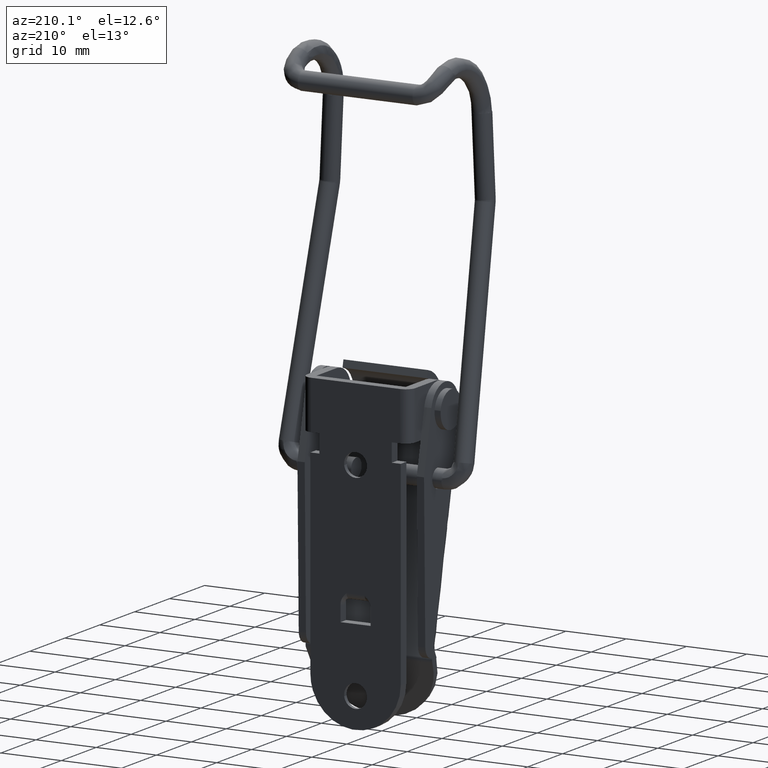
[diagram: clean part render]
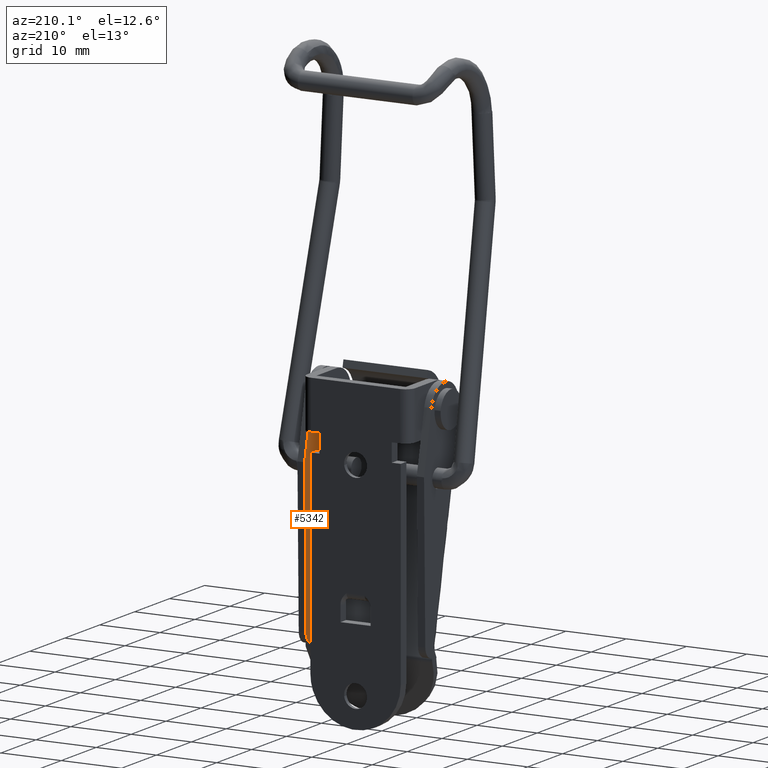
[diagram: same view with one face highlighted and labeled with its STEP entity id]
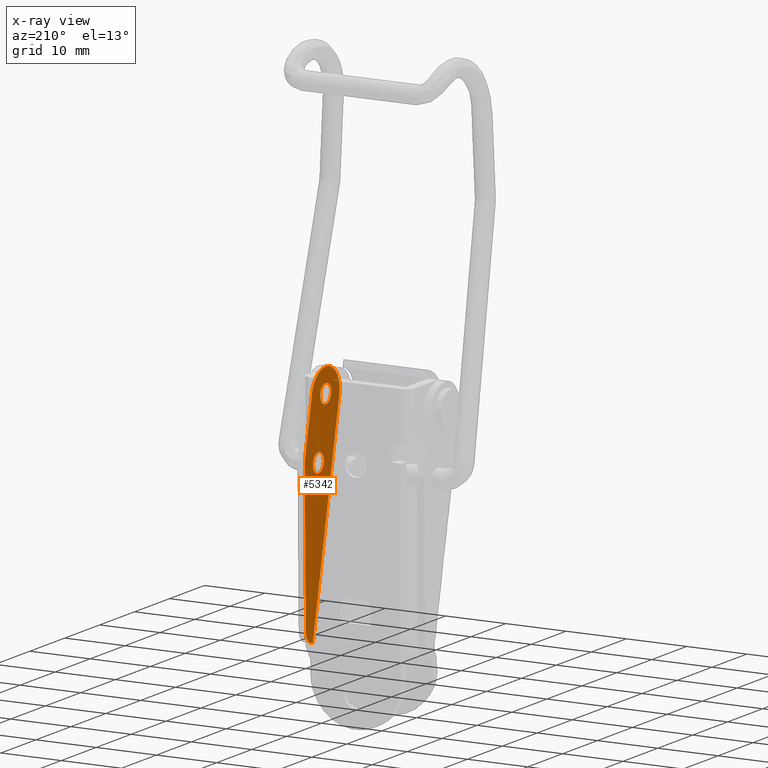
[diagram: x-ray of the same camera — body ghosted, the highlighted face saturated]
A machine part, auxiliary view. The second image highlights one B-rep face of the part: STEP entity #5342.
The next image is the same camera in x-ray: the body ghosted, the highlighted face saturated — about 7% of this face is hidden behind the body in this view.
In plain terms, the highlighted face is a freeform B-spline surface patch.
Its self-contained STEP definition (entity closure, byte-faithful):
#3793=CARTESIAN_POINT('',(9.299999999999997,1.538012631396265,-0.192398403490090));
#3794=VERTEX_POINT('',#3793);
#3795=CARTESIAN_POINT('',(9.299999999999999,0.0,-1.550000000000000));
#3796=VERTEX_POINT('',#3795);
#3797=CARTESIAN_POINT('',(9.299999999999997,1.538012631396265,-0.192398403490090));
#3798=CARTESIAN_POINT('',(9.299999999999999,1.368182829755275,-1.550000000000000));
#3799=CARTESIAN_POINT('',(9.299999999999999,0.0,-1.550000000000000));
#3807=(BOUNDED_CURVE()B_SPLINE_CURVE(2,(#3797,#3798,#3799),.UNSPECIFIED.,.F.,.U.)B_SPLINE_CURVE_WITH_KNOTS((3,3),(0.271473929029114,0.500000000000000),.UNSPECIFIED.)CURVE()GEOMETRIC_REPRESENTATION_ITEM()RATIONAL_B_SPLINE_CURVE((0.954005430161362,0.732265053962183,1.0))REPRESENTATION_ITEM(''));
#3808=EDGE_CURVE('',#3794,#3796,#3807,.T.);
#3810=CARTESIAN_POINT('',(9.300000000000001,-1.549940980744037,0.013526130644518));
#3811=VERTEX_POINT('',#3810);
#3812=CARTESIAN_POINT('',(9.299999999999999,0.0,-1.550000000000000));
#3813=CARTESIAN_POINT('',(9.300000000000001,-1.550000000000001,-1.550000000000001));
#3814=CARTESIAN_POINT('',(9.299999999999999,-1.550000000000000,0.0));
#3815=CARTESIAN_POINT('',(9.299999999999999,-1.550000000000000,0.006763194394158));
#3816=CARTESIAN_POINT('',(9.300000000000001,-1.549940980744037,0.013526130644518));
#3824=(BOUNDED_CURVE()B_SPLINE_CURVE(2,(#3812,#3813,#3814,#3815,#3816),.UNSPECIFIED.,.F.,.U.)B_SPLINE_CURVE_WITH_KNOTS((3,2,3),(0.500000000000000,0.750000000000000,0.751539894476369),.UNSPECIFIED.)CURVE()GEOMETRIC_REPRESENTATION_ITEM()RATIONAL_B_SPLINE_CURVE((1.0,0.707106781186547,1.0,0.998195901400733,0.996414027773208))REPRESENTATION_ITEM(''));
#3825=EDGE_CURVE('',#3796,#3811,#3824,.T.);
#3896=CARTESIAN_POINT('',(9.299999999999999,0.0,1.550000000000000));
#3897=VERTEX_POINT('',#3896);
#3898=CARTESIAN_POINT('',(9.299999999999999,0.0,1.550000000000000));
#3899=CARTESIAN_POINT('',(9.300000000000001,1.550000000000001,1.550000000000001));
#3900=CARTESIAN_POINT('',(9.299999999999999,1.550000000000000,0.0));
#3901=CARTESIAN_POINT('',(9.299999999999999,1.550000000000000,-0.096572637946388));
#3902=CARTESIAN_POINT('',(9.299999999999997,1.538012631396265,-0.192398403490090));
#3910=(BOUNDED_CURVE()B_SPLINE_CURVE(2,(#3898,#3899,#3900,#3901,#3902),.UNSPECIFIED.,.F.,.U.)B_SPLINE_CURVE_WITH_KNOTS((3,2,3),(0.0,0.250000000000000,0.271473929029114),.UNSPECIFIED.)CURVE()GEOMETRIC_REPRESENTATION_ITEM()RATIONAL_B_SPLINE_CURVE((1.0,0.707106781186547,1.0,0.974841727224365,0.954005430161363))REPRESENTATION_ITEM(''));
#3911=EDGE_CURVE('',#3897,#3794,#3910,.T.);
#3945=CARTESIAN_POINT('',(9.300000000000001,-1.549940980744037,0.013526130644518));
#3946=CARTESIAN_POINT('',(9.299999999999999,-1.536532375188856,1.550000000000000));
#3947=CARTESIAN_POINT('',(9.299999999999999,0.0,1.550000000000000));
#3955=(BOUNDED_CURVE()B_SPLINE_CURVE(2,(#3945,#3946,#3947),.UNSPECIFIED.,.F.,.U.)B_SPLINE_CURVE_WITH_KNOTS((3,3),(0.751539894476370,1.0),.UNSPECIFIED.)CURVE()GEOMETRIC_REPRESENTATION_ITEM()RATIONAL_B_SPLINE_CURVE((0.996414027773206,0.708910879785816,1.0))REPRESENTATION_ITEM(''));
#3956=EDGE_CURVE('',#3811,#3897,#3955,.T.);
#4165=CARTESIAN_POINT('',(9.299999999999997,3.647012631396160,-9.978398403490207));
#4166=VERTEX_POINT('',#4165);
#4167=CARTESIAN_POINT('',(9.299999999999999,2.108999999999895,-11.336000000000119));
#4168=VERTEX_POINT('',#4167);
#4169=CARTESIAN_POINT('',(9.299999999999997,3.647012631396160,-9.978398403490205));
#4170=CARTESIAN_POINT('',(9.299999999999999,3.477182829755170,-11.336000000000121));
#4171=CARTESIAN_POINT('',(9.299999999999999,2.108999999999895,-11.336000000000119));
#4179=(BOUNDED_CURVE()B_SPLINE_CURVE(2,(#4169,#4170,#4171),.UNSPECIFIED.,.F.,.U.)B_SPLINE_CURVE_WITH_KNOTS((3,3),(0.271473929029114,0.500000000000000),.UNSPECIFIED.)CURVE()GEOMETRIC_REPRESENTATION_ITEM()RATIONAL_B_SPLINE_CURVE((0.954005430161363,0.732265053962182,1.0))REPRESENTATION_ITEM(''));
#4180=EDGE_CURVE('',#4166,#4168,#4179,.T.);
#4182=CARTESIAN_POINT('',(9.300000000000001,0.559059019255858,-9.772473869355601));
#4183=VERTEX_POINT('',#4182);
#4184=CARTESIAN_POINT('',(9.299999999999999,2.108999999999895,-11.336000000000119));
#4185=CARTESIAN_POINT('',(9.300000000000001,0.558999999999895,-11.336000000000119));
#4186=CARTESIAN_POINT('',(9.299999999999999,0.558999999999895,-9.786000000000119));
#4187=CARTESIAN_POINT('',(9.299999999999999,0.558999999999895,-9.779236805605960));
#4188=CARTESIAN_POINT('',(9.300000000000001,0.559059019255858,-9.772473869355601));
#4196=(BOUNDED_CURVE()B_SPLINE_CURVE(2,(#4184,#4185,#4186,#4187,#4188),.UNSPECIFIED.,.F.,.U.)B_SPLINE_CURVE_WITH_KNOTS((3,2,3),(0.500000000000000,0.750000000000000,0.751539894476369),.UNSPECIFIED.)CURVE()GEOMETRIC_REPRESENTATION_ITEM()RATIONAL_B_SPLINE_CURVE((1.0,0.707106781186547,1.0,0.998195901400733,0.996414027773208))REPRESENTATION_ITEM(''));
#4197=EDGE_CURVE('',#4168,#4183,#4196,.T.);
#4268=CARTESIAN_POINT('',(9.299999999999999,2.108999999999895,-8.236000000000120));
#4269=VERTEX_POINT('',#4268);
#4270=CARTESIAN_POINT('',(9.299999999999999,2.108999999999895,-8.236000000000120));
#4271=CARTESIAN_POINT('',(9.300000000000001,3.658999999999895,-8.236000000000120));
#4272=CARTESIAN_POINT('',(9.299999999999999,3.658999999999895,-9.786000000000119));
#4273=CARTESIAN_POINT('',(9.299999999999997,3.658999999999894,-9.882572637946506));
#4274=CARTESIAN_POINT('',(9.299999999999997,3.647012631396160,-9.978398403490207));
#4282=(BOUNDED_CURVE()B_SPLINE_CURVE(2,(#4270,#4271,#4272,#4273,#4274),.UNSPECIFIED.,.F.,.U.)B_SPLINE_CURVE_WITH_KNOTS((3,2,3),(0.0,0.250000000000000,0.271473929029114),.UNSPECIFIED.)CURVE()GEOMETRIC_REPRESENTATION_ITEM()RATIONAL_B_SPLINE_CURVE((1.0,0.707106781186547,1.0,0.974841727224365,0.954005430161363))REPRESENTATION_ITEM(''));
#4283=EDGE_CURVE('',#4269,#4166,#4282,.T.);
#4317=CARTESIAN_POINT('',(9.300000000000001,0.559059019255858,-9.772473869355601));
#4318=CARTESIAN_POINT('',(9.299999999999999,0.572467624811040,-8.236000000000120));
#4319=CARTESIAN_POINT('',(9.299999999999999,2.108999999999895,-8.236000000000120));
#4327=(BOUNDED_CURVE()B_SPLINE_CURVE(2,(#4317,#4318,#4319),.UNSPECIFIED.,.F.,.U.)B_SPLINE_CURVE_WITH_KNOTS((3,3),(0.751539894476370,1.0),.UNSPECIFIED.)CURVE()GEOMETRIC_REPRESENTATION_ITEM()RATIONAL_B_SPLINE_CURVE((0.996414027773206,0.708910879785816,1.0))REPRESENTATION_ITEM(''));
#4328=EDGE_CURVE('',#4183,#4269,#4327,.T.);
#4850=CARTESIAN_POINT('',(9.299999999999999,3.678905052597040,-36.034228971928563));
#4851=VERTEX_POINT('',#4850);
#4872=CARTESIAN_POINT('',(9.299999999999999,-3.910111654832475,-0.843224078607379));
#4873=VERTEX_POINT('',#4872);
#4879=CARTESIAN_POINT('',(9.299999999999999,-3.910111654832475,-0.843224078607379));
#4880=CARTESIAN_POINT('',(9.299999999999999,3.678905052597040,-36.034228971928563));
#4881=QUASI_UNIFORM_CURVE('',1,(#4879,#4880),.UNSPECIFIED.,.F.,.U.);
#4882=EDGE_CURVE('',#4873,#4851,#4881,.T.);
#4892=CARTESIAN_POINT('',(9.299999999999999,3.910111654832475,0.843224078607379));
#4893=VERTEX_POINT('',#4892);
#4894=CARTESIAN_POINT('',(9.299999999999999,6.018009980055100,-8.931304445610140));
#4895=VERTEX_POINT('',#4894);
#4896=CARTESIAN_POINT('',(9.299999999999999,3.910111654832475,0.843224078607379));
#4897=CARTESIAN_POINT('',(9.299999999999999,6.018009980055100,-8.931304445610140));
#4898=QUASI_UNIFORM_CURVE('',1,(#4896,#4897),.UNSPECIFIED.,.F.,.U.);
#4899=EDGE_CURVE('',#4893,#4895,#4898,.T.);
#4928=CARTESIAN_POINT('',(9.299999999999999,5.658000000000100,-34.021999999999998));
#4929=VERTEX_POINT('',#4928);
#4930=CARTESIAN_POINT('',(9.299999999999999,6.018009980055100,-8.931304445610140));
#4931=CARTESIAN_POINT('',(9.299999999999999,5.658000000000100,-34.021999999999998));
#4932=QUASI_UNIFORM_CURVE('',1,(#4930,#4931),.UNSPECIFIED.,.F.,.U.);
#4933=EDGE_CURVE('',#4895,#4929,#4932,.T.);
#4965=CARTESIAN_POINT('',(9.299999999999999,4.049606380274160,-35.954286425520003));
#4966=VERTEX_POINT('',#4965);
#4967=CARTESIAN_POINT('',(9.299999999999999,5.658000000000104,-34.021999999999998));
#4968=CARTESIAN_POINT('',(9.299999999999999,5.634809683807659,-35.638236203526709));
#4969=CARTESIAN_POINT('',(9.299999999999999,4.049606380274168,-35.954286425520053));
#4977=(BOUNDED_CURVE()B_SPLINE_CURVE(2,(#4967,#4968,#4969),.UNSPECIFIED.,.F.,.U.)CURVE()GEOMETRIC_REPRESENTATION_ITEM()QUASI_UNIFORM_CURVE()RATIONAL_B_SPLINE_CURVE((1.0,0.777681410003574,1.0))REPRESENTATION_ITEM(''));
#4978=EDGE_CURVE('',#4929,#4966,#4977,.T.);
#5063=CARTESIAN_POINT('',(9.299999999999999,-3.910111654832472,-0.843224078607382));
#5064=CARTESIAN_POINT('',(9.299999999999999,-4.753335733439853,3.066887576225092));
#5065=CARTESIAN_POINT('',(9.299999999999999,-0.843224078607381,3.910111654832471));
#5066=CARTESIAN_POINT('',(9.299999999999999,3.066887576225090,4.753335733439853));
#5067=CARTESIAN_POINT('',(9.299999999999999,3.910111654832472,0.843224078607381));
#5075=(BOUNDED_CURVE()B_SPLINE_CURVE(2,(#5063,#5064,#5065,#5066,#5067),.UNSPECIFIED.,.F.,.U.)B_SPLINE_CURVE_WITH_KNOTS((3,2,3),(0.0,0.500000000000000,1.0),.UNSPECIFIED.)CURVE()GEOMETRIC_REPRESENTATION_ITEM()RATIONAL_B_SPLINE_CURVE((1.0,0.707106781186548,1.0,0.707106781186548,1.0))REPRESENTATION_ITEM(''));
#5076=EDGE_CURVE('',#4873,#4893,#5075,.T.);
#5308=CARTESIAN_POINT('',(9.299999999999999,4.049606380274160,-35.954286425520003));
#5309=CARTESIAN_POINT('',(9.299999999999999,3.678905052597040,-36.034228971928563));
#5310=QUASI_UNIFORM_CURVE('',1,(#5308,#5309),.UNSPECIFIED.,.F.,.U.);
#5311=EDGE_CURVE('',#4966,#4851,#5310,.T.);
#5317=CARTESIAN_POINT('',(9.299999999999999,-4.500381044181067,5.999691248360542));
#5318=CARTESIAN_POINT('',(9.299999999999999,6.518408945919157,5.999691248360542));
#5319=CARTESIAN_POINT('',(9.299999999999999,-4.500381044181067,-38.033938829242587));
#5320=CARTESIAN_POINT('',(9.299999999999999,6.518408945919157,-38.033938829242587));
#5321=B_SPLINE_SURFACE_WITH_KNOTS('',1,1,((#5317,#5319),(#5318,#5320)),.UNSPECIFIED.,.F.,.F.,.U.,(2,2),(2,2),(0.0,11.018789990100220),(0.0,44.033630077603142),.UNSPECIFIED.);
#5322=ORIENTED_EDGE('',*,*,#5076,.T.);
#5323=ORIENTED_EDGE('',*,*,#4899,.T.);
#5324=ORIENTED_EDGE('',*,*,#4933,.T.);
#5325=ORIENTED_EDGE('',*,*,#4978,.T.);
#5326=ORIENTED_EDGE('',*,*,#5311,.T.);
#5327=ORIENTED_EDGE('',*,*,#4882,.F.);
#5328=EDGE_LOOP('',(#5322,#5323,#5324,#5325,#5326,#5327));
#5329=FACE_OUTER_BOUND('',#5328,.T.);
#5330=ORIENTED_EDGE('',*,*,#4197,.F.);
#5331=ORIENTED_EDGE('',*,*,#4180,.F.);
#5332=ORIENTED_EDGE('',*,*,#4283,.F.);
#5333=ORIENTED_EDGE('',*,*,#4328,.F.);
#5334=EDGE_LOOP('',(#5330,#5331,#5332,#5333));
#5335=FACE_BOUND('',#5334,.T.);
#5336=ORIENTED_EDGE('',*,*,#3825,.F.);
#5337=ORIENTED_EDGE('',*,*,#3808,.F.);
#5338=ORIENTED_EDGE('',*,*,#3911,.F.);
#5339=ORIENTED_EDGE('',*,*,#3956,.F.);
#5340=EDGE_LOOP('',(#5336,#5337,#5338,#5339));
#5341=FACE_BOUND('',#5340,.T.);
#5342=ADVANCED_FACE('',(#5329,#5335,#5341),#5321,.T.);